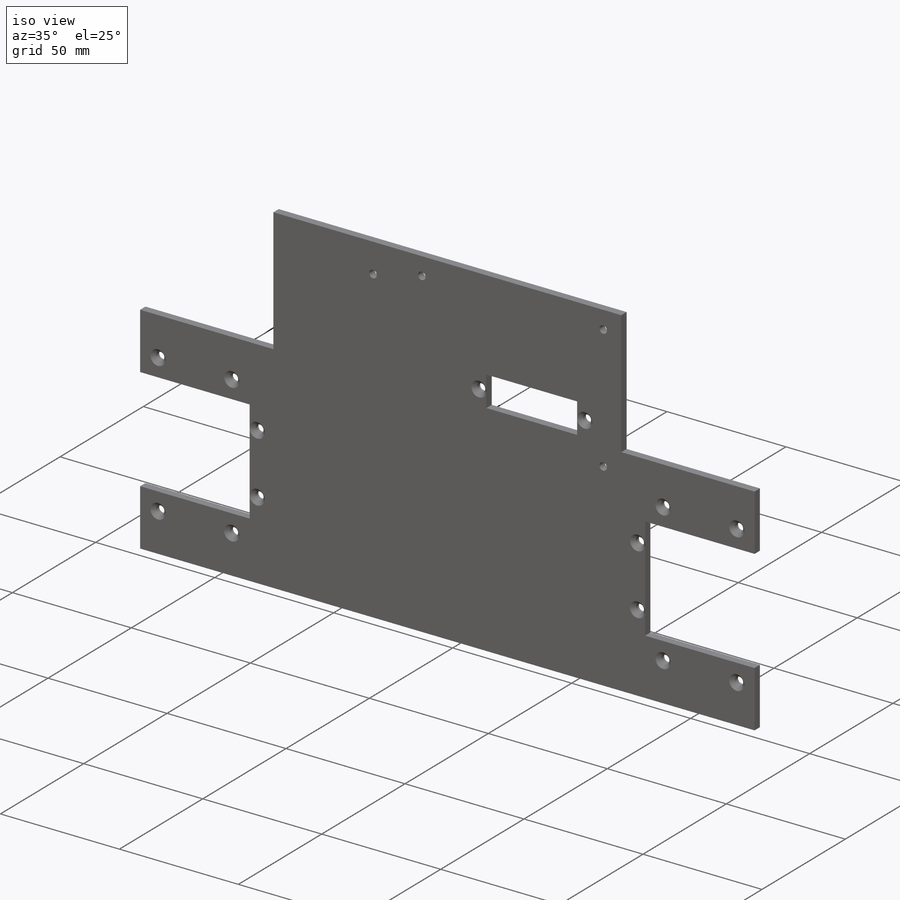
[diagram: iso view]
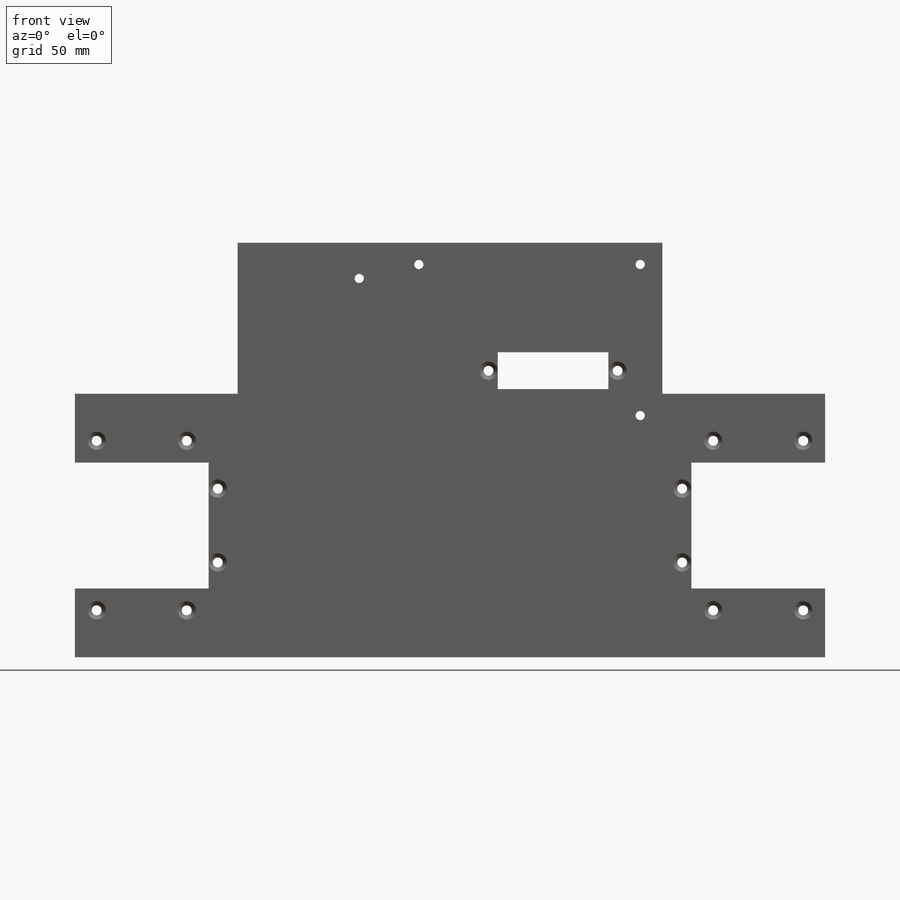
[diagram: front view]
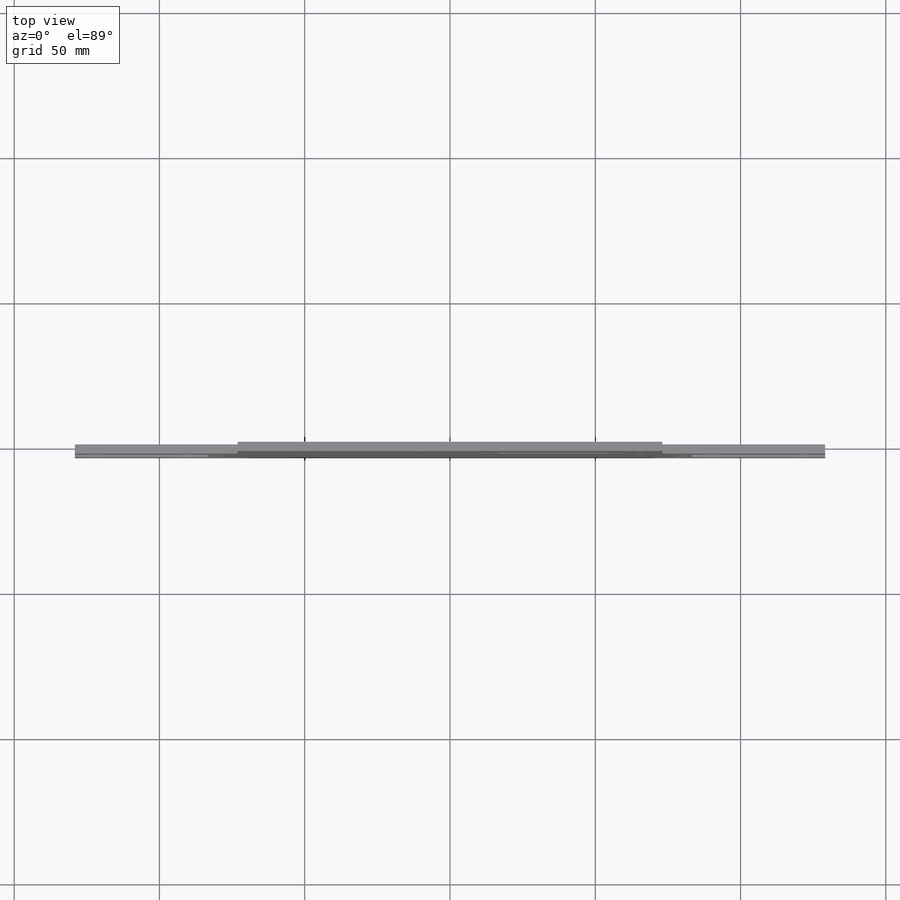
[diagram: top view]
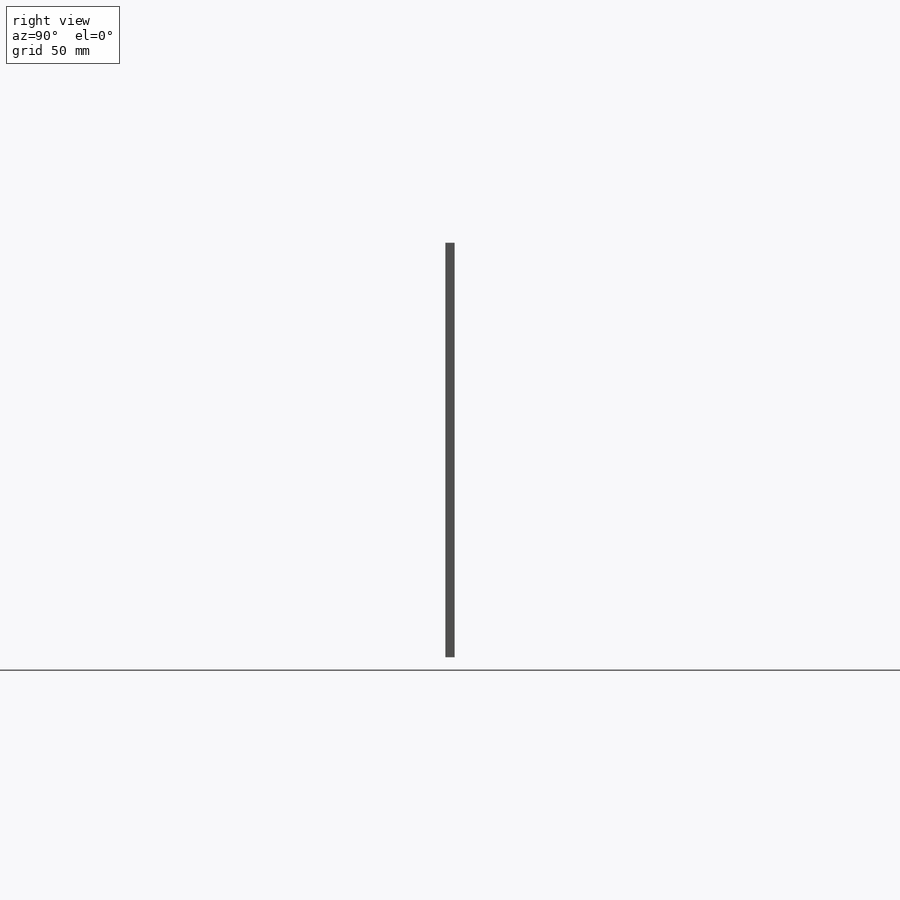
[diagram: right view]
SOLIDWORKS PART (.sldprt)
format: sldprt  version: not decoded by parser v0  size: 468,992 bytes
history: native  units: mm
features: sketch x15, cut_extrude x4, hole x3, material x1, extrude x1 (+13 scaffold rows collapsed)
feature tree (37):
  scaffold x13  (default folders/planes/origin — collapsed)
  material  "Material <not specified>"
  sketch  "Profile Sketch"  dims[D1=90.7mm D2=258.2mm D3=52.0mm D4=146.18mm]
  extrude  "Profile Extrude"  Depth=3.175mm
  sketch  "Film Feeder Mounting Hole Sketch"  dims[D1=31.0mm D2=58.35mm D3=7.5mm]
  hole  "CSK for M3 Flat Head Machine Screw1"  Diameter=3.4mm Depth=3.175mm
  sketch  "3DSketch1"
  sketch  "Sketch2"  dims[hole-wizard template sketch: 59 standard entries collapsed; hole parameters above]
  sketch  "Film Feeder Clearance Sketch"  dims[D1=46.0mm D2=43.35mm D3=46.0mm D4=43.35mm]
  cut_extrude  "Film Feeder Clearance Cut"  [1 undecoded]
  sketch  "Gantry Mounting Hole Sketch"  dims[c1.D2=3.15mm c1.D4=3.15mm c1.D7=3.15mm c1.D1=7.5mm c1.D3=7.5mm c1.D5=7.5mm c1.D6=76.2mm c1.D8=76.2mm c1.D9=52.0mm c2.D3=76.2mm c2.D6=7.62mm]
  cut_extrude  "Gantry Mounting Hole Cut"  [1 undecoded]
  sketch  "Eraser Mounting Hole Sketch"  dims[c1.D1=3.15mm c1.D3=3.15mm c1.D2=12.3mm c2.D3=20.5mm]
  cut_extrude  "Eraser Mounting Hole Cut"  [1 undecoded]
  sketch  "Centering Sketch"  dims[D1=142.7mm]
  sketch  "Film Friction Guide Mounting Hole Sketch"  dims[D1=3.175mm D2=12.7mm]
  hole  "Film Friction Guide Mounting Holes"  Diameter=3.4mm Depth=3.175mm
  sketch  "3DSketch2"
  sketch  "Sketch5"  dims[hole-wizard template sketch: 59 standard entries collapsed; hole parameters above]
  sketch  "Belt Passageway Sketch"  dims[c1.D1=~15.861928mm c1.D2=~20.562565mm c2.D1=1.5875mm c2.D2=14.2875mm c2.D3=38.1mm c2.D4=~37.61994mm]
  cut_extrude  "Belt Passageway Cut"  [1 undecoded]
  sketch  "Belt Friction Guide Hole Sketch"  dims[D1=3.175mm D2=3.175mm]
  hole  "CSK for M3 Flat Head Machine Screw3"  Diameter=3.4mm Depth=3.175mm
  sketch  "3DSketch3"
  sketch  "Sketch8"  dims[hole-wizard template sketch: 59 standard entries collapsed; hole parameters above]
decode coverage: 16 of 23 modeling features carry decoded parameters
note: ~ marks probable driven/reference dimensions
note: 4 parameter values undecoded
summary: no parameter record found for 4 features
note: suppression state not decoded; provenance and decode notes live in map.json
